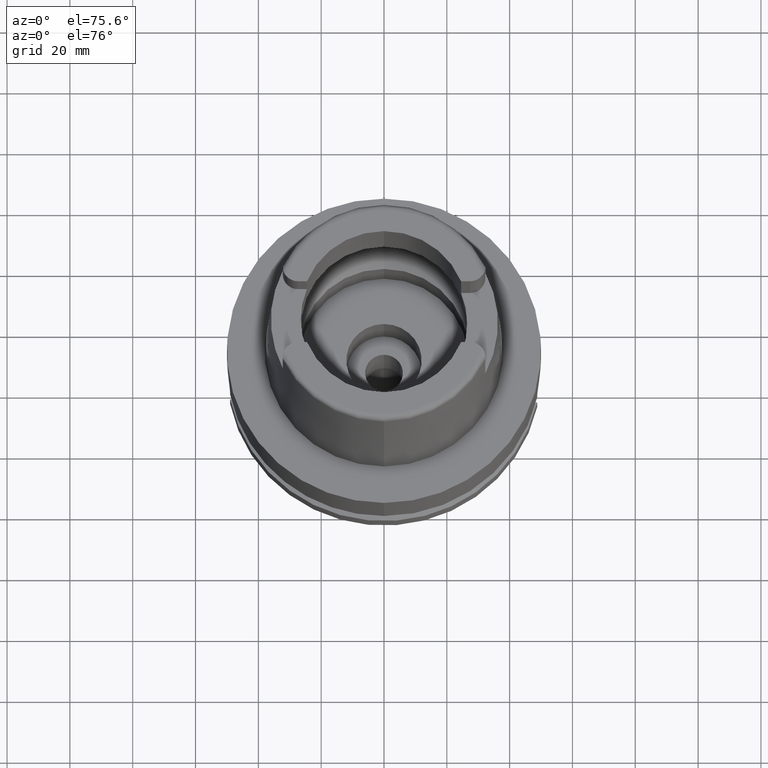
[diagram: clean part render]
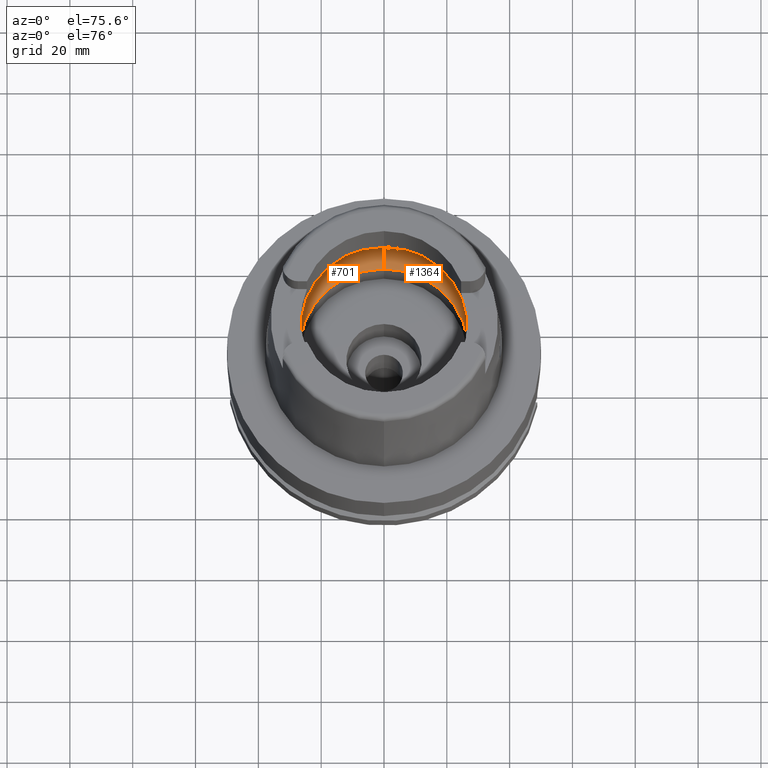
[diagram: same view with one multi-face feature highlighted, each face labeled with its STEP entity id]
A machine part, auxiliary view. The highlighted faces form ONE feature: a constant-radius fillet chain: 2 tangent blend faces with common blend radius 12 mm. The faces share edges in the B-rep.
Their STEP definitions:
[1] entity #701 (Torus):
#18 = CARTESIAN_POINT ( 'NONE',  ( 0.0000000000000000000, 26.89999999999999858, 0.04993178413029000090 ) ) ;
#49 = DIRECTION ( 'NONE',  ( 0.0000000000000000000, 1.000000000000000000, 0.0000000000000000000 ) ) ;
#61 = CARTESIAN_POINT ( 'NONE',  ( -31.45843235400999660, -1.626121130666000170, 9.205188134635001518 ) ) ;
#194 = CARTESIAN_POINT ( 'NONE',  ( 0.0000000000000000000, -19.50000000000000000, 9.496624327025999790 ) ) ;
#221 = CIRCLE ( 'NONE', #3370, 31.49999999999998934 ) ;
#461 = DIRECTION ( 'NONE',  ( 0.0000000000000000000, 0.6166666666667049990, -0.7872243785746061429 ) ) ;
#518 = ORIENTED_EDGE ( 'NONE', *, *, #1863, .T. ) ;
#527 = CARTESIAN_POINT ( 'NONE',  ( -31.40918884336000616, 2.390158196043999705, 9.496624327025999790 ) ) ;
#558 = EDGE_CURVE ( 'NONE', #3869, #5534, #1212, .T. ) ;
#669 = ORIENTED_EDGE ( 'NONE', *, *, #4988, .F. ) ;
#701 = ADVANCED_FACE ( 'NONE', ( #3906 ), #2553, .F. ) ;
#766 = CIRCLE ( 'NONE', #5373, 11.99999999999999822 ) ;
#839 = ORIENTED_EDGE ( 'NONE', *, *, #4949, .F. ) ;
#886 = ORIENTED_EDGE ( 'NONE', *, *, #5271, .F. ) ;
#1209 = AXIS2_PLACEMENT_3D ( 'NONE', #3972, #2604, #3096 ) ;
#1212 = CIRCLE ( 'NONE', #2638, 11.99999999999999822 ) ;
#1269 = CARTESIAN_POINT ( 'NONE',  ( -31.48971910754000447, -0.2740811097498000448, 9.000000000000000000 ) ) ;
#1319 = CARTESIAN_POINT ( 'NONE',  ( 0.0000000000000000000, 19.50000000000000000, 9.496624327025999790 ) ) ;
#1327 = DIRECTION ( 'NONE',  ( 0.0000000000000000000, -1.000000000000000000, 0.0000000000000000000 ) ) ;
#1352 = CARTESIAN_POINT ( 'NONE',  ( -31.48416659375000037, -0.8216262390445000507, 9.037606438216000626 ) ) ;
#1483 = DIRECTION ( 'NONE',  ( 0.0000000000000000000, -0.6166666666667049990, -0.7872243785746061429 ) ) ;
#1536 = CARTESIAN_POINT ( 'NONE',  ( 0.0000000000000000000, 31.50000000000000000, 9.496624327025999790 ) ) ;
#1615 = CARTESIAN_POINT ( 'NONE',  ( -31.48971910754000447, 0.2740813517951999900, 9.000000000000000000 ) ) ;
#1650 = CIRCLE ( 'NONE', #5371, 31.50000000000000000 ) ;
#1724 = B_SPLINE_CURVE_WITH_KNOTS ( 'NONE', 3,
 ( #3920, #1818, #61, #1352, #1269, #2629 ),
 .UNSPECIFIED., .F., .F.,
 ( 4, 1, 1, 4 ),
 ( 0.0000000000000000000, 0.3333333333333000081, 0.6666666666667000474, 1.000000000000000000 ),
 .UNSPECIFIED. ) ;
#1752 = B_SPLINE_CURVE_WITH_KNOTS ( 'NONE', 3,
 ( #5027, #1615, #5054, #5420, #4190, #4131 ),
 .UNSPECIFIED., .F., .F.,
 ( 4, 1, 1, 4 ),
 ( 0.0000000000000000000, 0.3333333333333000081, 0.6666666666667000474, 1.000000000000000000 ),
 .UNSPECIFIED. ) ;
#1772 = EDGE_LOOP ( 'NONE', ( #2046, #3493, #839, #518, #886, #3317, #669 ) ) ;
#1818 = CARTESIAN_POINT ( 'NONE',  ( -31.42817545703999826, -2.140654152532999621, 9.388262810390001434 ) ) ;
#1863 = EDGE_CURVE ( 'NONE', #1866, #3902, #766, .T. ) ;
#1866 = VERTEX_POINT ( 'NONE', #18 ) ;
#1888 = CARTESIAN_POINT ( 'NONE',  ( 0.0000000000000000000, -31.50000000000000000, 9.496624327025999790 ) ) ;
#1930 = DIRECTION ( 'NONE',  ( -1.000000000000000000, 0.0000000000000000000, 0.0000000000000000000 ) ) ;
#2046 = ORIENTED_EDGE ( 'NONE', *, *, #4945, .F. ) ;
#2202 = CARTESIAN_POINT ( 'NONE',  ( 0.0000000000000000000, 0.0000000000000000000, 9.496624327025999790 ) ) ;
#2237 = CARTESIAN_POINT ( 'NONE',  ( 0.0000000000000000000, 0.0000000000000000000, 9.496624327025999790 ) ) ;
#2351 = VERTEX_POINT ( 'NONE', #527 ) ;
#2510 = EDGE_CURVE ( 'NONE', #4093, #2351, #1752, .T. ) ;
#2553 = TOROIDAL_SURFACE ( 'NONE', #4838, 19.50000000000000000, 12.00000000000000000 ) ;
#2604 = DIRECTION ( 'NONE',  ( 0.0000000000000000000, 0.0000000000000000000, 1.000000000000000000 ) ) ;
#2629 = CARTESIAN_POINT ( 'NONE',  ( -31.48971910754000447, 0.0000000000000000000, 9.000000000000000000 ) ) ;
#2638 = AXIS2_PLACEMENT_3D ( 'NONE', #194, #1930, #1483 ) ;
#2697 = DIRECTION ( 'NONE',  ( 0.0000000000000000000, 0.0000000000000000000, 1.000000000000000000 ) ) ;
#2846 = CARTESIAN_POINT ( 'NONE',  ( 0.0000000000000000000, 0.0000000000000000000, 9.496624327025999790 ) ) ;
#3096 = DIRECTION ( 'NONE',  ( 0.0000000000000000000, 1.000000000000000000, 0.0000000000000000000 ) ) ;
#3317 = ORIENTED_EDGE ( 'NONE', *, *, #2510, .F. ) ;
#3370 = AXIS2_PLACEMENT_3D ( 'NONE', #2846, #4598, #4999 ) ;
#3466 = CIRCLE ( 'NONE', #1209, 26.89999999999999858 ) ;
#3493 = ORIENTED_EDGE ( 'NONE', *, *, #558, .F. ) ;
#3869 = VERTEX_POINT ( 'NONE', #5323 ) ;
#3902 = VERTEX_POINT ( 'NONE', #1536 ) ;
#3906 = FACE_OUTER_BOUND ( 'NONE', #1772, .T. ) ;
#3920 = CARTESIAN_POINT ( 'NONE',  ( -31.40918884336000616, -2.390158196043999705, 9.496624327025999790 ) ) ;
#3972 = CARTESIAN_POINT ( 'NONE',  ( 0.0000000000000000000, 0.0000000000000000000, 0.04993178413029000090 ) ) ;
#4093 = VERTEX_POINT ( 'NONE', #4954 ) ;
#4131 = CARTESIAN_POINT ( 'NONE',  ( -31.40918884336000616, 2.390158196043999705, 9.496624327025999790 ) ) ;
#4190 = CARTESIAN_POINT ( 'NONE',  ( -31.42817526838999953, 2.140656631636999929, 9.388263887083001080 ) ) ;
#4311 = CARTESIAN_POINT ( 'NONE',  ( -31.40918884336000616, -2.390158196043999705, 9.496624327025999790 ) ) ;
#4598 = DIRECTION ( 'NONE',  ( 0.0000000000000000000, 0.0000000000000000000, -1.000000000000000000 ) ) ;
#4781 = DIRECTION ( 'NONE',  ( 0.0000000000000000000, 0.0000000000000000000, -1.000000000000000000 ) ) ;
#4838 = AXIS2_PLACEMENT_3D ( 'NONE', #2202, #2697, #49 ) ;
#4945 = EDGE_CURVE ( 'NONE', #5534, #5428, #1650, .T. ) ;
#4949 = EDGE_CURVE ( 'NONE', #1866, #3869, #3466, .T. ) ;
#4954 = CARTESIAN_POINT ( 'NONE',  ( -31.48971910754000447, 0.0000000000000000000, 9.000000000000000000 ) ) ;
#4988 = EDGE_CURVE ( 'NONE', #5428, #4093, #1724, .T. ) ;
#4999 = DIRECTION ( 'NONE',  ( -0.9971171061384295209, 0.07587803796965221503, 0.0000000000000000000 ) ) ;
#5027 = CARTESIAN_POINT ( 'NONE',  ( -31.48971910754000447, 0.0000000000000000000, 9.000000000000000000 ) ) ;
#5054 = CARTESIAN_POINT ( 'NONE',  ( -31.48416661469000033, 0.8216269012393999649, 9.037606318336999678 ) ) ;
#5271 = EDGE_CURVE ( 'NONE', #2351, #3902, #221, .T. ) ;
#5323 = CARTESIAN_POINT ( 'NONE',  ( 0.0000000000000000000, -26.89999999999999858, 0.04993178413029000090 ) ) ;
#5350 = DIRECTION ( 'NONE',  ( 1.000000000000000000, 0.0000000000000000000, 0.0000000000000000000 ) ) ;
#5371 = AXIS2_PLACEMENT_3D ( 'NONE', #2237, #4781, #1327 ) ;
#5373 = AXIS2_PLACEMENT_3D ( 'NONE', #1319, #5350, #461 ) ;
#5420 = CARTESIAN_POINT ( 'NONE',  ( -31.45843209623000547, 1.626127188330999784, 9.205189758010000389 ) ) ;
#5428 = VERTEX_POINT ( 'NONE', #4311 ) ;
#5534 = VERTEX_POINT ( 'NONE', #1888 ) ;
[2] entity #1364 (Torus):
#5 = CARTESIAN_POINT ( 'NONE',  ( 31.45843215351000310, 1.626125992769999806, 9.205189397203000112 ) ) ;
#18 = CARTESIAN_POINT ( 'NONE',  ( 0.0000000000000000000, 26.89999999999999858, 0.04993178413029000090 ) ) ;
#83 = VERTEX_POINT ( 'NONE', #2028 ) ;
#134 = CIRCLE ( 'NONE', #1654, 31.49999999999998934 ) ;
#175 = B_SPLINE_CURVE_WITH_KNOTS ( 'NONE', 3,
 ( #5321, #2682, #659, #999, #4421, #632 ),
 .UNSPECIFIED., .F., .F.,
 ( 4, 1, 1, 4 ),
 ( 0.0000000000000000000, 0.3333333333333000081, 0.6666666666667000474, 1.000000000000000000 ),
 .UNSPECIFIED. ) ;
#194 = CARTESIAN_POINT ( 'NONE',  ( 0.0000000000000000000, -19.50000000000000000, 9.496624327025999790 ) ) ;
#335 = AXIS2_PLACEMENT_3D ( 'NONE', #4923, #1066, #4486 ) ;
#461 = DIRECTION ( 'NONE',  ( 0.0000000000000000000, 0.6166666666667049990, -0.7872243785746061429 ) ) ;
#558 = EDGE_CURVE ( 'NONE', #3869, #5534, #1212, .T. ) ;
#619 = ORIENTED_EDGE ( 'NONE', *, *, #5041, .F. ) ;
#632 = CARTESIAN_POINT ( 'NONE',  ( 31.40918884336000616, -2.390158196043999705, 9.496624327025999790 ) ) ;
#659 = CARTESIAN_POINT ( 'NONE',  ( 31.48416657243999950, -0.8216274657312000462, 9.037606582851999804 ) ) ;
#685 = DIRECTION ( 'NONE',  ( 0.0000000000000000000, 0.0000000000000000000, -1.000000000000000000 ) ) ;
#766 = CIRCLE ( 'NONE', #5373, 11.99999999999999822 ) ;
#842 = EDGE_CURVE ( 'NONE', #1882, #5534, #134, .T. ) ;
#869 = CARTESIAN_POINT ( 'NONE',  ( 31.48416663622000300, 0.8216256622719000369, 9.037606172252001357 ) ) ;
#999 = CARTESIAN_POINT ( 'NONE',  ( 31.45843229728999901, -1.626122314408000147, 9.205188491873000700 ) ) ;
#1066 = DIRECTION ( 'NONE',  ( 0.0000000000000000000, 0.0000000000000000000, 1.000000000000000000 ) ) ;
#1212 = CIRCLE ( 'NONE', #2638, 11.99999999999999822 ) ;
#1262 = CARTESIAN_POINT ( 'NONE',  ( 31.42817530553000083, 2.140656143518000487, 9.388263675090000149 ) ) ;
#1319 = CARTESIAN_POINT ( 'NONE',  ( 0.0000000000000000000, 19.50000000000000000, 9.496624327025999790 ) ) ;
#1350 = DIRECTION ( 'NONE',  ( 0.0000000000000000000, 0.0000000000000000000, 1.000000000000000000 ) ) ;
#1364 = ADVANCED_FACE ( 'NONE', ( #3506 ), #2383, .F. ) ;
#1374 = CARTESIAN_POINT ( 'NONE',  ( 0.0000000000000000000, 0.0000000000000000000, 9.496624327025999790 ) ) ;
#1427 = ORIENTED_EDGE ( 'NONE', *, *, #842, .F. ) ;
#1483 = DIRECTION ( 'NONE',  ( 0.0000000000000000000, -0.6166666666667049990, -0.7872243785746061429 ) ) ;
#1536 = CARTESIAN_POINT ( 'NONE',  ( 0.0000000000000000000, 31.50000000000000000, 9.496624327025999790 ) ) ;
#1654 = AXIS2_PLACEMENT_3D ( 'NONE', #3613, #685, #3163 ) ;
#1675 = ORIENTED_EDGE ( 'NONE', *, *, #1863, .F. ) ;
#1758 = CIRCLE ( 'NONE', #5106, 26.89999999999999858 ) ;
#1787 = ORIENTED_EDGE ( 'NONE', *, *, #2216, .F. ) ;
#1863 = EDGE_CURVE ( 'NONE', #1866, #3902, #766, .T. ) ;
#1866 = VERTEX_POINT ( 'NONE', #18 ) ;
#1882 = VERTEX_POINT ( 'NONE', #3779 ) ;
#1888 = CARTESIAN_POINT ( 'NONE',  ( 0.0000000000000000000, -31.50000000000000000, 9.496624327025999790 ) ) ;
#1930 = DIRECTION ( 'NONE',  ( -1.000000000000000000, 0.0000000000000000000, 0.0000000000000000000 ) ) ;
#2028 = CARTESIAN_POINT ( 'NONE',  ( 31.40918884336000616, 2.390158196043999705, 9.496624327025999790 ) ) ;
#2178 = CARTESIAN_POINT ( 'NONE',  ( 31.40918884336000616, 2.390158196043999705, 9.496624327025999790 ) ) ;
#2216 = EDGE_CURVE ( 'NONE', #3869, #1866, #1758, .T. ) ;
#2383 = TOROIDAL_SURFACE ( 'NONE', #335, 19.50000000000000000, 12.00000000000000000 ) ;
#2409 = ORIENTED_EDGE ( 'NONE', *, *, #558, .T. ) ;
#2410 = CARTESIAN_POINT ( 'NONE',  ( 31.48971910754000447, 0.0000000000000000000, 9.000000000000000000 ) ) ;
#2579 = CARTESIAN_POINT ( 'NONE',  ( 31.48971910754000447, 0.0000000000000000000, 9.000000000000000000 ) ) ;
#2638 = AXIS2_PLACEMENT_3D ( 'NONE', #194, #1930, #1483 ) ;
#2682 = CARTESIAN_POINT ( 'NONE',  ( 31.48971910754000447, -0.2740816369240999806, 9.000000000000000000 ) ) ;
#2780 = B_SPLINE_CURVE_WITH_KNOTS ( 'NONE', 3,
 ( #2178, #1262, #5, #869, #4255, #2579 ),
 .UNSPECIFIED., .F., .F.,
 ( 4, 1, 1, 4 ),
 ( 0.0000000000000000000, 0.3333333333333000081, 0.6666666666667000474, 1.000000000000000000 ),
 .UNSPECIFIED. ) ;
#2907 = AXIS2_PLACEMENT_3D ( 'NONE', #1374, #4294, #5237 ) ;
#3163 = DIRECTION ( 'NONE',  ( 0.9971171061384295209, -0.07587803796965221503, 0.0000000000000000000 ) ) ;
#3387 = DIRECTION ( 'NONE',  ( 0.0000000000000000000, -1.000000000000000000, 0.0000000000000000000 ) ) ;
#3506 = FACE_OUTER_BOUND ( 'NONE', #4419, .T. ) ;
#3613 = CARTESIAN_POINT ( 'NONE',  ( 0.0000000000000000000, 0.0000000000000000000, 9.496624327025999790 ) ) ;
#3779 = CARTESIAN_POINT ( 'NONE',  ( 31.40918884336000616, -2.390158196043999705, 9.496624327025999790 ) ) ;
#3869 = VERTEX_POINT ( 'NONE', #5323 ) ;
#3902 = VERTEX_POINT ( 'NONE', #1536 ) ;
#3918 = CARTESIAN_POINT ( 'NONE',  ( 0.0000000000000000000, 0.0000000000000000000, 0.04993178413029000090 ) ) ;
#4255 = CARTESIAN_POINT ( 'NONE',  ( 31.48971910754000447, 0.2740808193429000172, 9.000000000000000000 ) ) ;
#4294 = DIRECTION ( 'NONE',  ( 0.0000000000000000000, 0.0000000000000000000, -1.000000000000000000 ) ) ;
#4396 = VERTEX_POINT ( 'NONE', #2410 ) ;
#4419 = EDGE_LOOP ( 'NONE', ( #5139, #5160, #1675, #1787, #2409, #1427, #619 ) ) ;
#4421 = CARTESIAN_POINT ( 'NONE',  ( 31.42817542026000410, -2.140654635826999996, 9.388263020288000860 ) ) ;
#4486 = DIRECTION ( 'NONE',  ( 0.0000000000000000000, 1.000000000000000000, 0.0000000000000000000 ) ) ;
#4518 = EDGE_CURVE ( 'NONE', #83, #4396, #2780, .T. ) ;
#4827 = CIRCLE ( 'NONE', #2907, 31.50000000000000000 ) ;
#4923 = CARTESIAN_POINT ( 'NONE',  ( 0.0000000000000000000, 0.0000000000000000000, 9.496624327025999790 ) ) ;
#4932 = EDGE_CURVE ( 'NONE', #3902, #83, #4827, .T. ) ;
#5041 = EDGE_CURVE ( 'NONE', #4396, #1882, #175, .T. ) ;
#5106 = AXIS2_PLACEMENT_3D ( 'NONE', #3918, #1350, #3387 ) ;
#5139 = ORIENTED_EDGE ( 'NONE', *, *, #4518, .F. ) ;
#5160 = ORIENTED_EDGE ( 'NONE', *, *, #4932, .F. ) ;
#5237 = DIRECTION ( 'NONE',  ( 0.0000000000000000000, 1.000000000000000000, 0.0000000000000000000 ) ) ;
#5321 = CARTESIAN_POINT ( 'NONE',  ( 31.48971910754000447, 0.0000000000000000000, 9.000000000000000000 ) ) ;
#5323 = CARTESIAN_POINT ( 'NONE',  ( 0.0000000000000000000, -26.89999999999999858, 0.04993178413029000090 ) ) ;
#5350 = DIRECTION ( 'NONE',  ( 1.000000000000000000, 0.0000000000000000000, 0.0000000000000000000 ) ) ;
#5373 = AXIS2_PLACEMENT_3D ( 'NONE', #1319, #5350, #461 ) ;
#5534 = VERTEX_POINT ( 'NONE', #1888 ) ;